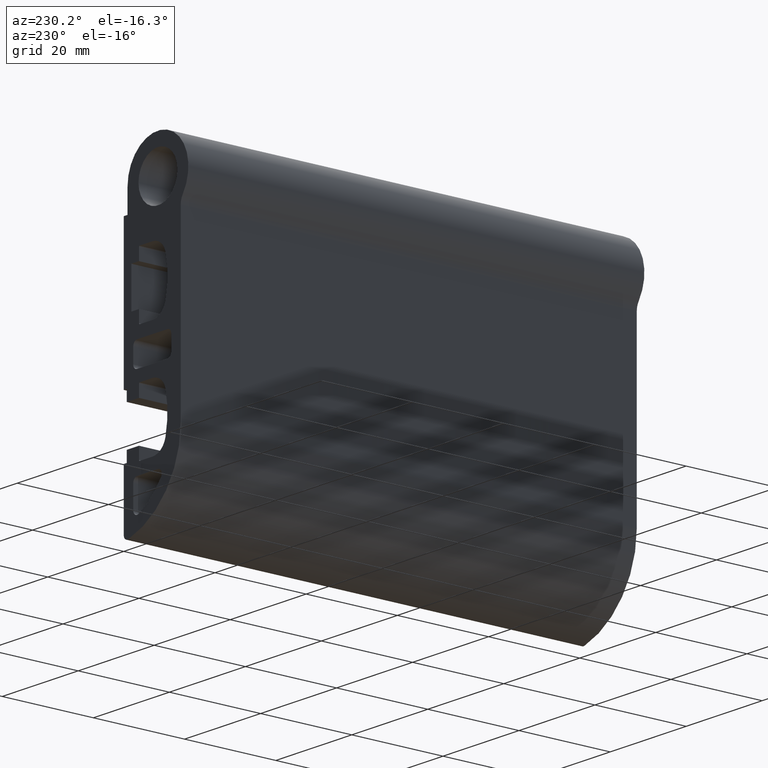
[diagram: clean part render]
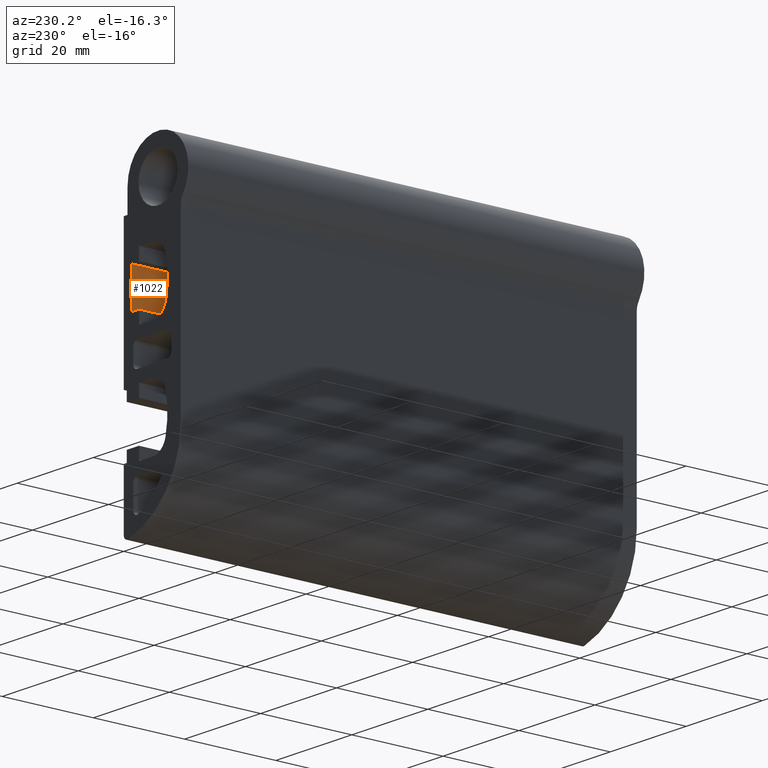
[diagram: same view with one face highlighted and labeled with its STEP entity id]
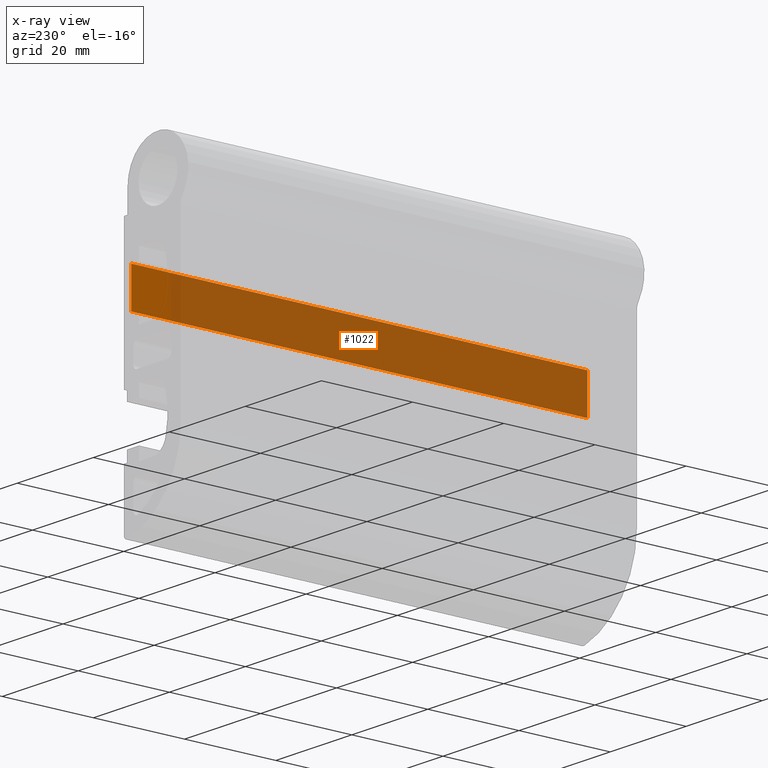
[diagram: x-ray of the same camera — body ghosted, the highlighted face saturated]
A machine part, auxiliary view. The second image highlights one B-rep face of the part: STEP entity #1022.
The next image is the same camera in x-ray: the body ghosted, the highlighted face saturated — about 91% of this face is hidden behind the body in this view.
In plain terms, the highlighted planar face has unit normal (1, 0, 0).
Its self-contained STEP definition (entity closure, byte-faithful):
#103=FACE_OUTER_BOUND('',#156,.T.);
#156=EDGE_LOOP('',(#719,#720,#721,#722));
#209=LINE('',#1499,#316);
#228=LINE('',#1558,#335);
#230=LINE('',#1561,#337);
#231=LINE('',#1562,#338);
#316=VECTOR('',#1190,10.);
#335=VECTOR('',#1249,10.);
#337=VECTOR('',#1253,10.);
#338=VECTOR('',#1254,10.);
#421=VERTEX_POINT('',#1493);
#423=VERTEX_POINT('',#1497);
#442=VERTEX_POINT('',#1555);
#443=VERTEX_POINT('',#1557);
#525=EDGE_CURVE('',#421,#423,#209,.T.);
#554=EDGE_CURVE('',#442,#443,#228,.T.);
#556=EDGE_CURVE('',#421,#442,#230,.T.);
#557=EDGE_CURVE('',#443,#423,#231,.T.);
#719=ORIENTED_EDGE('',*,*,#556,.F.);
#720=ORIENTED_EDGE('',*,*,#525,.T.);
#721=ORIENTED_EDGE('',*,*,#557,.F.);
#722=ORIENTED_EDGE('',*,*,#554,.F.);
#987=PLANE('',#1105);
#1022=ADVANCED_FACE('',(#103),#987,.F.);
#1105=AXIS2_PLACEMENT_3D('',#1560,#1251,#1252);
#1190=DIRECTION('',(0.,1.,0.));
#1249=DIRECTION('',(0.,1.,0.));
#1251=DIRECTION('center_axis',(1.,0.,7.26931742314091E-16));
#1252=DIRECTION('ref_axis',(7.26931742314091E-16,0.,-1.));
#1253=DIRECTION('',(7.26931742314091E-16,-1.01669276321759E-17,-1.));
#1254=DIRECTION('',(-7.26931742314091E-16,1.01669276321759E-17,1.));
#1493=CARTESIAN_POINT('',(-2.,0.,-8.8));
#1497=CARTESIAN_POINT('',(-2.,100.,-8.8));
#1499=CARTESIAN_POINT('',(-2.,0.,-8.8));
#1555=CARTESIAN_POINT('',(-2.,0.,-17.2));
#1557=CARTESIAN_POINT('',(-2.,100.,-17.2));
#1558=CARTESIAN_POINT('',(-2.,0.,-17.2));
#1560=CARTESIAN_POINT('Origin',(-2.,0.,-8.8));
#1561=CARTESIAN_POINT('',(-2.,6.60040430155724E-16,-16.3791286869207));
#1562=CARTESIAN_POINT('',(-2.,100.,-16.3791286869207));